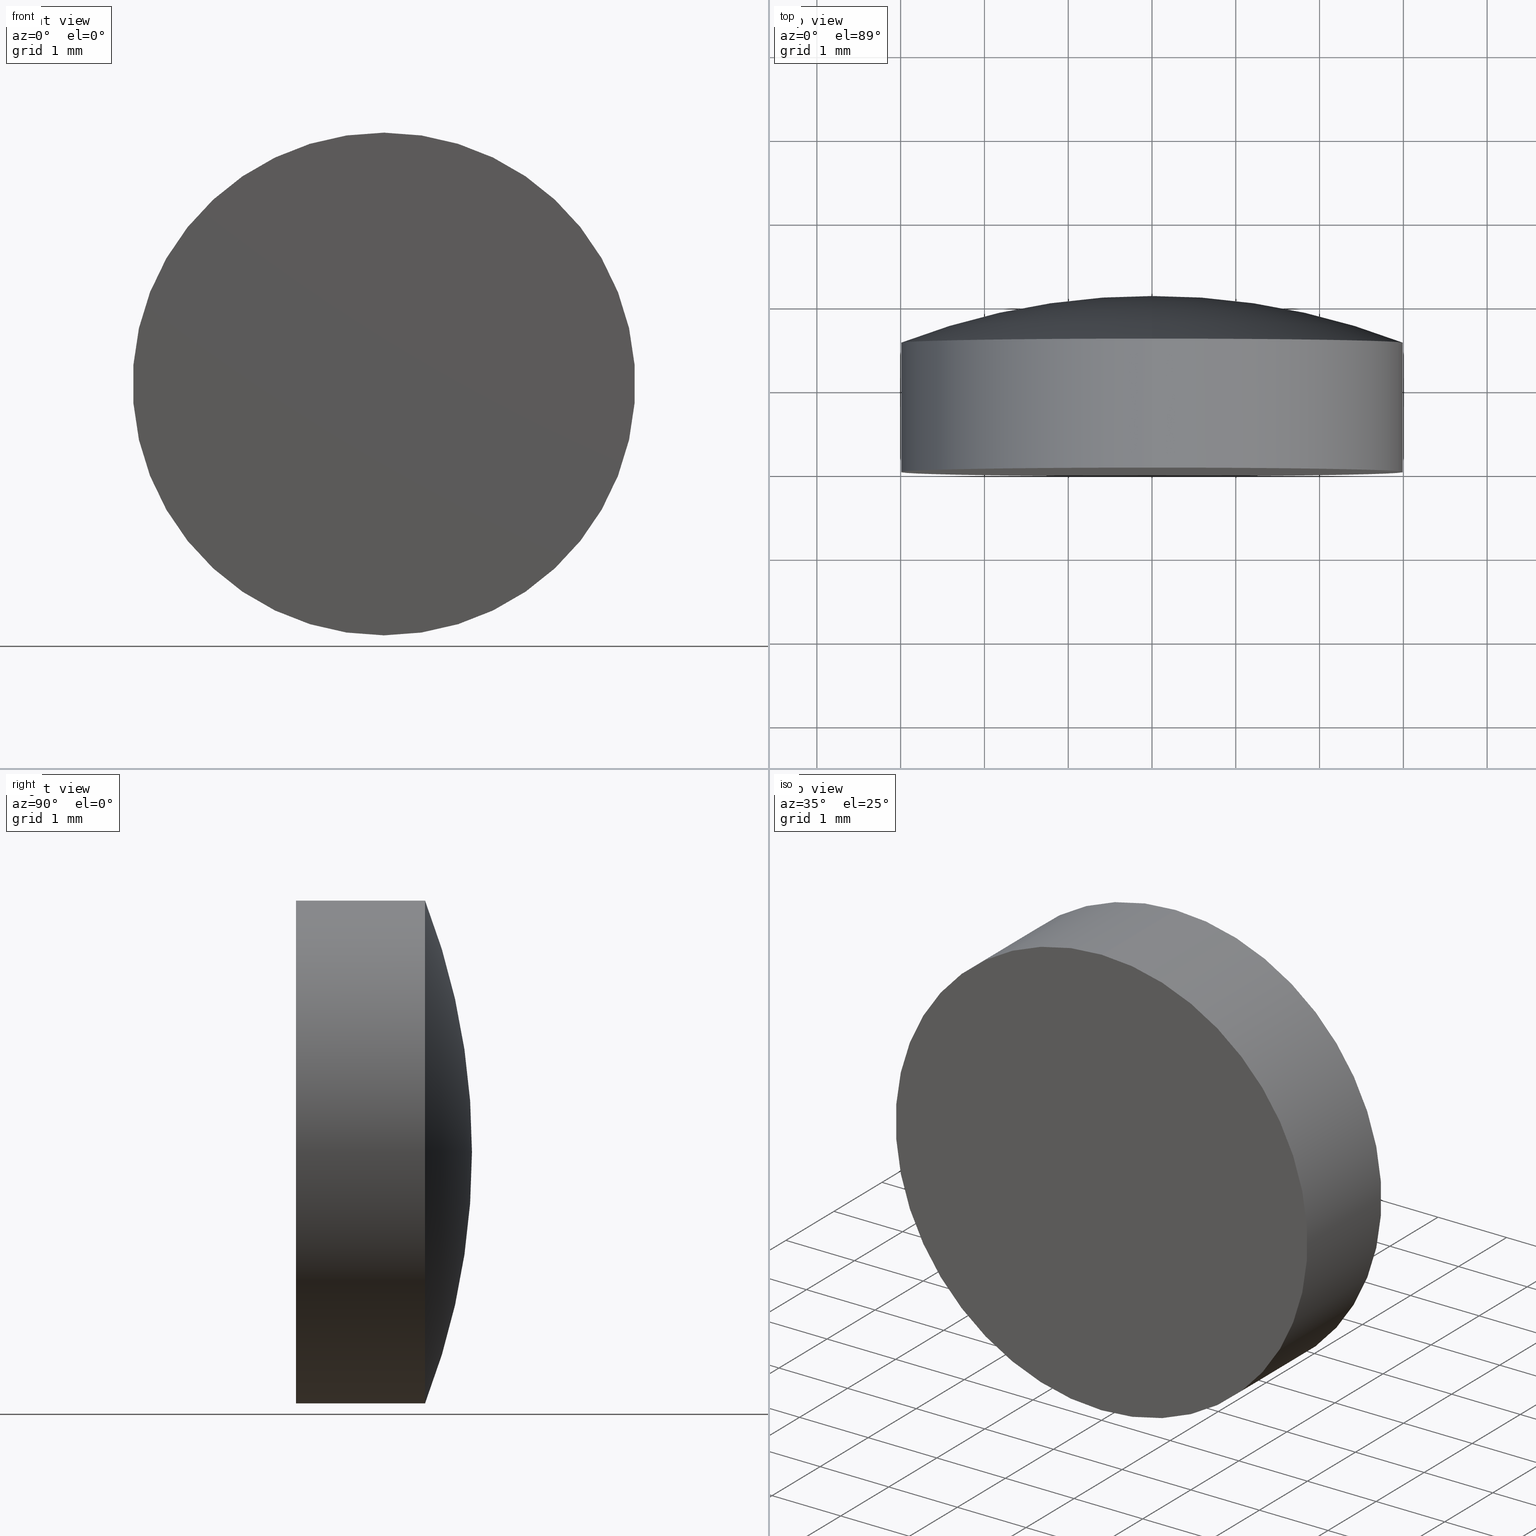
[diagram: canonical four-view strip — front | top / right | iso, engineering-drawing reading convention]
A machine part, canonical four-view strip (front | top / right | iso — engineering-drawing reading convention). The complete STEP part file that produces these views, byte-faithful:
ISO-10303-21;
HEADER;
FILE_DESCRIPTION (( 'STEP AP203' ),
    '1' );
FILE_NAME ('100585.STEP',
    '2024-05-10T01:30:10',
    ( '' ),
    ( '' ),
    'SwSTEP 2.0',
    'SolidWorks 2020',
    '' );
FILE_SCHEMA (( 'CONFIG_CONTROL_DESIGN' ));
ENDSEC;

DATA;
#1 = APPLICATION_PROTOCOL_DEFINITION ( 'international standard', 'config_control_design', 1994, #130 ) ;
#2 = EDGE_CURVE ( 'NONE', #73, #144, #4, .T. ) ;
#3 = EDGE_LOOP ( 'NONE', ( #192, #131, #18, #175 ) ) ;
#4 = CIRCLE ( 'NONE', #179, 8.259999999999999787 ) ;
#5 = SHAPE_DEFINITION_REPRESENTATION ( #169, #183 ) ;
#6 = EDGE_LOOP ( 'NONE', ( #70, #161, #100 ) ) ;
#7 = CC_DESIGN_SECURITY_CLASSIFICATION ( #113, ( #174 ) ) ;
#8 = APPROVAL_STATUS ( 'not_yet_approved' ) ;
#9 = CARTESIAN_POINT ( 'NONE',  ( 0.000000000000000000, -4.336808689942017736E-16, 0.000000000000000000 ) ) ;
#10 = PERSON_AND_ORGANIZATION_ROLE ( 'design_supplier' ) ;
#11 = CC_DESIGN_PERSON_AND_ORGANIZATION_ASSIGNMENT ( #145, #196, ( #113 ) ) ;
#12 = DIRECTION ( 'NONE',  ( -0.000000000000000000, 1.000000000000000000, -0.000000000000000000 ) ) ;
#13 = FACE_OUTER_BOUND ( 'NONE', #200, .T. ) ;
#14 = MANIFOLD_SOLID_BREP ( '��ת1', #79 ) ;
#15 = AXIS2_PLACEMENT_3D ( 'NONE', #168, #198, #199 ) ;
#16 = LOCAL_TIME ( 9, 30, 10.00000000000000000, #106 ) ;
#17 = PRODUCT_RELATED_PRODUCT_CATEGORY ( 'detail', '', ( #155 ) ) ;
#18 = ORIENTED_EDGE ( 'NONE', *, *, #64, .T. ) ;
#19 = APPROVAL_ROLE ( '' ) ;
#20 = CALENDAR_DATE ( 2024, 10, 5 ) ;
#21 = VERTEX_POINT ( 'NONE', #102 ) ;
#22 = PERSON_AND_ORGANIZATION ( #38, #33 ) ;
#23 = LINE ( 'NONE', #87, #139 ) ;
#24 = CALENDAR_DATE ( 2024, 10, 5 ) ;
#25 = DIRECTION ( 'NONE',  ( -0.000000000000000000, 1.000000000000000000, 0.000000000000000000 ) ) ;
#26 = APPROVAL_ROLE ( '' ) ;
#27 = LOCAL_TIME ( 9, 30, 10.00000000000000000, #191 ) ;
#28 = CC_DESIGN_DATE_AND_TIME_ASSIGNMENT ( #35, #158, ( #160 ) ) ;
#29 = DIRECTION ( 'NONE',  ( -0.000000000000000000, 1.000000000000000000, -0.000000000000000000 ) ) ;
#30 = CYLINDRICAL_SURFACE ( 'NONE', #128, 2.999999999999999112 ) ;
#31 = DIRECTION ( 'NONE',  ( 1.224646799147353207E-16, 0.000000000000000000, -1.000000000000000000 ) ) ;
#32 = EDGE_CURVE ( 'NONE', #115, #21, #96, .T. ) ;
#33 = ORGANIZATION ( 'δָ��', 'δָ��', '' ) ;
#34 = AXIS2_PLACEMENT_3D ( 'NONE', #59, #78, #182 ) ;
#35 = DATE_AND_TIME ( #110, #129 ) ;
#36 = PERSON_AND_ORGANIZATION_ROLE ( 'design_owner' ) ;
#37 = CC_DESIGN_APPROVAL ( #126, ( #113 ) ) ;
#38 = PERSON ( 'δָ��', 'δָ��', 'δָ��', ('δָ��'), ('δָ��'), ('δָ��') ) ;
#39 = AXIS2_PLACEMENT_3D ( 'NONE', #201, #66, #171 ) ;
#40 = CARTESIAN_POINT ( 'NONE',  ( 0.000000000000000000, -1.836970198721029934E-16, 0.000000000000000000 ) ) ;
#41 = DIRECTION ( 'NONE',  ( 0.000000000000000000, 0.000000000000000000, 1.000000000000000000 ) ) ;
#42 = DIRECTION ( 'NONE',  ( -0.000000000000000000, 1.000000000000000000, -0.000000000000000000 ) ) ;
#43 = CIRCLE ( 'NONE', #34, 2.999999999999998668 ) ;
#44 = PERSON_AND_ORGANIZATION ( #38, #33 ) ;
#45 = CYLINDRICAL_SURFACE ( 'NONE', #99, 2.999999999999999112 ) ;
#46 = LINE ( 'NONE', #136, #172 ) ;
#47 = DIRECTION ( 'NONE',  ( 1.000000000000000000, 0.000000000000000000, 1.224646799147353207E-16 ) ) ;
#48 = APPROVAL_PERSON_ORGANIZATION ( #22, #126, #91 ) ;
#49 = CC_DESIGN_PERSON_AND_ORGANIZATION_ASSIGNMENT ( #44, #10, ( #174 ) ) ;
#50 = ADVANCED_FACE ( 'NONE', ( #165 ), #177, .F. ) ;
#51 = CIRCLE ( 'NONE', #123, 2.999999999999998668 ) ;
#52 = CC_DESIGN_PERSON_AND_ORGANIZATION_ASSIGNMENT ( #68, #65, ( #160 ) ) ;
#53 = EDGE_LOOP ( 'NONE', ( #116, #83 ) ) ;
#54 = VERTEX_POINT ( 'NONE', #163 ) ;
#55 = DIRECTION ( 'NONE',  ( -0.000000000000000000, 1.000000000000000000, -0.000000000000000000 ) ) ;
#56 =( NAMED_UNIT ( * ) PLANE_ANGLE_UNIT ( ) SI_UNIT ( $, .RADIAN. ) );
#57 = CALENDAR_DATE ( 2024, 10, 5 ) ;
#58 = DIRECTION ( 'NONE',  ( 0.000000000000000000, 0.000000000000000000, 1.000000000000000000 ) ) ;
#59 = CARTESIAN_POINT ( 'NONE',  ( 0.000000000000000000, 1.539999999999998037, 0.000000000000000000 ) ) ;
#60 = CC_DESIGN_APPROVAL ( #197, ( #160 ) ) ;
#61 = CC_DESIGN_DATE_AND_TIME_ASSIGNMENT ( #121, #143, ( #113 ) ) ;
#62 = ORIENTED_EDGE ( 'NONE', *, *, #2, .T. ) ;
#63 = CIRCLE ( 'NONE', #94, 3.000000000000000000 ) ;
#64 = EDGE_CURVE ( 'NONE', #21, #73, #23, .T. ) ;
#65 = PERSON_AND_ORGANIZATION_ROLE ( 'creator' ) ;
#66 = DIRECTION ( 'NONE',  ( 0.000000000000000000, 0.000000000000000000, 1.000000000000000000 ) ) ;
#67 = TOROIDAL_SURFACE ( 'NONE', #184, 0.01040122243469885840, 8.259999999999999787 ) ;
#68 = PERSON_AND_ORGANIZATION ( #38, #33 ) ;
#69 = APPROVAL ( #75, 'δָ��' ) ;
#70 = ORIENTED_EDGE ( 'NONE', *, *, #84, .T. ) ;
#71 = CIRCLE ( 'NONE', #153, 8.259999999999999787 ) ;
#72 = ORIENTED_EDGE ( 'NONE', *, *, #138, .T. ) ;
#73 = VERTEX_POINT ( 'NONE', #146 ) ;
#74 = APPROVAL_PERSON_ORGANIZATION ( #81, #69, #26 ) ;
#75 = APPROVAL_STATUS ( 'not_yet_approved' ) ;
#76 = SECURITY_CLASSIFICATION_LEVEL ( 'unclassified' ) ;
#77 = CARTESIAN_POINT ( 'NONE',  ( 3.673940397442059868E-16, -4.336808689942017736E-16, -3.000000000000000000 ) ) ;
#78 = DIRECTION ( 'NONE',  ( -0.000000000000000000, 1.000000000000000000, -0.000000000000000000 ) ) ;
#79 = CLOSED_SHELL ( 'NONE', ( #170, #190, #124, #92, #50 ) ) ;
#80 = LOCAL_TIME ( 9, 30, 10.00000000000000000, #159 ) ;
#81 = PERSON_AND_ORGANIZATION ( #38, #33 ) ;
#82 = APPROVAL_DATE_TIME ( #142, #197 ) ;
#83 = ORIENTED_EDGE ( 'NONE', *, *, #32, .F. ) ;
#84 = EDGE_CURVE ( 'NONE', #73, #54, #51, .T. ) ;
#85 = PERSON_AND_ORGANIZATION_ROLE ( 'creator' ) ;
#86 = DIRECTION ( 'NONE',  ( -0.000000000000000000, 1.000000000000000000, -0.000000000000000000 ) ) ;
#87 = CARTESIAN_POINT ( 'NONE',  ( 0.000000000000000000, 2.100000000000000089, 2.999999999999999112 ) ) ;
#88 =( NAMED_UNIT ( * ) SI_UNIT ( $, .STERADIAN. ) SOLID_ANGLE_UNIT ( ) );
#89 = DATE_AND_TIME ( #147, #185 ) ;
#90 = DIRECTION ( 'NONE',  ( 0.000000000000000000, 0.000000000000000000, 1.000000000000000000 ) ) ;
#91 = APPROVAL_ROLE ( '' ) ;
#92 = ADVANCED_FACE ( 'NONE', ( #13 ), #103, .T. ) ;
#93 = CARTESIAN_POINT ( 'NONE',  ( 0.000000000000000000, 2.100000000000000089, 0.000000000000000000 ) ) ;
#94 = AXIS2_PLACEMENT_3D ( 'NONE', #118, #29, #90 ) ;
#95 = FACE_OUTER_BOUND ( 'NONE', #3, .T. ) ;
#96 = CIRCLE ( 'NONE', #111, 3.000000000000000000 ) ;
#97 = PERSON_AND_ORGANIZATION ( #38, #33 ) ;
#98 = APPLICATION_CONTEXT ( 'configuration controlled 3d designs of mechanical parts and assemblies' ) ;
#99 = AXIS2_PLACEMENT_3D ( 'NONE', #166, #42, #195 ) ;
#100 = ORIENTED_EDGE ( 'NONE', *, *, #2, .F. ) ;
#101 = DIRECTION ( 'NONE',  ( 0.000000000000000000, 0.000000000000000000, 1.000000000000000000 ) ) ;
#102 = CARTESIAN_POINT ( 'NONE',  ( 0.000000000000000000, -4.336808689942017736E-16, 3.000000000000000000 ) ) ;
#103 = TOROIDAL_SURFACE ( 'NONE', #15, 0.01040122243469885840, 8.259999999999999787 ) ;
#104 = DIRECTION ( 'NONE',  ( -0.000000000000000000, 1.000000000000000000, -0.000000000000000000 ) ) ;
#105 = CC_DESIGN_APPROVAL ( #69, ( #174 ) ) ;
#106 = COORDINATED_UNIVERSAL_TIME_OFFSET ( 8, 0, .AHEAD. ) ;
#107 = CARTESIAN_POINT ( 'NONE',  ( 2.286988957586610915E-16, 2.099999999999997868, 0.000000000000000000 ) ) ;
#108 = CARTESIAN_POINT ( 'NONE',  ( 0.000000000000000000, 1.539999999999998037, 0.000000000000000000 ) ) ;
#109 = DESIGN_CONTEXT ( 'detailed design', #130, 'design' ) ;
#110 = CALENDAR_DATE ( 2024, 10, 5 ) ;
#111 = AXIS2_PLACEMENT_3D ( 'NONE', #9, #55, #148 ) ;
#112 = PERSON_AND_ORGANIZATION ( #38, #33 ) ;
#113 = SECURITY_CLASSIFICATION ( '', '', #76 ) ;
#114 =( GEOMETRIC_REPRESENTATION_CONTEXT ( 3 ) GLOBAL_UNCERTAINTY_ASSIGNED_CONTEXT ( ( #125 ) ) GLOBAL_UNIT_ASSIGNED_CONTEXT ( ( #149, #56, #88 ) ) REPRESENTATION_CONTEXT ( 'NONE', 'WORKASPACE' ) );
#115 = VERTEX_POINT ( 'NONE', #77 ) ;
#116 = ORIENTED_EDGE ( 'NONE', *, *, #193, .F. ) ;
#117 = DIRECTION ( 'NONE',  ( -1.000000000000000000, 0.000000000000000000, 0.000000000000000000 ) ) ;
#118 = CARTESIAN_POINT ( 'NONE',  ( 0.000000000000000000, -4.336808689942017736E-16, 0.000000000000000000 ) ) ;
#119 = DIRECTION ( 'NONE',  ( 0.000000000000000000, 0.000000000000000000, 1.000000000000000000 ) ) ;
#120 = CC_DESIGN_PERSON_AND_ORGANIZATION_ASSIGNMENT ( #112, #36, ( #155 ) ) ;
#121 = DATE_AND_TIME ( #24, #27 ) ;
#122 = FACE_OUTER_BOUND ( 'NONE', #6, .T. ) ;
#123 = AXIS2_PLACEMENT_3D ( 'NONE', #108, #167, #151 ) ;
#124 = ADVANCED_FACE ( 'NONE', ( #95 ), #30, .T. ) ;
#125 = UNCERTAINTY_MEASURE_WITH_UNIT (LENGTH_MEASURE( 1.000000000000000082E-05 ), #149, 'distance_accuracy_value', 'NONE');
#126 = APPROVAL ( #8, 'δָ��' ) ;
#127 = APPROVAL_STATUS ( 'not_yet_approved' ) ;
#128 = AXIS2_PLACEMENT_3D ( 'NONE', #93, #12, #58 ) ;
#129 = LOCAL_TIME ( 9, 30, 10.00000000000000000, #187 ) ;
#130 = APPLICATION_CONTEXT ( 'configuration controlled 3d designs of mechanical parts and assemblies' ) ;
#131 = ORIENTED_EDGE ( 'NONE', *, *, #32, .T. ) ;
#132 = CARTESIAN_POINT ( 'NONE',  ( 0.000000000000000000, -6.159993451242676166, 0.01040122243469885840 ) ) ;
#133 = CARTESIAN_POINT ( 'NONE',  ( 0.000000000000000000, -6.159993451242676166, 0.000000000000000000 ) ) ;
#134 = COORDINATED_UNIVERSAL_TIME_OFFSET ( 8, 0, .AHEAD. ) ;
#135 = APPROVAL_DATE_TIME ( #89, #69 ) ;
#136 = CARTESIAN_POINT ( 'NONE',  ( 3.673940397442058882E-16, 2.100000000000000089, -2.999999999999999112 ) ) ;
#137 = CARTESIAN_POINT ( 'NONE',  ( 1.273782376187359739E-18, -6.159993451242676166, -0.01040122243469885840 ) ) ;
#138 = EDGE_CURVE ( 'NONE', #115, #54, #46, .T. ) ;
#139 = VECTOR ( 'NONE', #86, 1000.000000000000000 ) ;
#140 = APPROVAL_PERSON_ORGANIZATION ( #97, #197, #19 ) ;
#141 = CC_DESIGN_PERSON_AND_ORGANIZATION_ASSIGNMENT ( #150, #85, ( #174 ) ) ;
#142 = DATE_AND_TIME ( #20, #80 ) ;
#143 = DATE_TIME_ROLE ( 'classification_date' ) ;
#144 = VERTEX_POINT ( 'NONE', #107 ) ;
#145 = PERSON_AND_ORGANIZATION ( #38, #33 ) ;
#146 = CARTESIAN_POINT ( 'NONE',  ( 0.000000000000000000, 1.539999999999998037, 2.999999999999998668 ) ) ;
#147 = CALENDAR_DATE ( 2024, 10, 5 ) ;
#148 = DIRECTION ( 'NONE',  ( 0.000000000000000000, 0.000000000000000000, 1.000000000000000000 ) ) ;
#149 =( LENGTH_UNIT ( ) NAMED_UNIT ( * ) SI_UNIT ( .MILLI., .METRE. ) );
#150 = PERSON_AND_ORGANIZATION ( #38, #33 ) ;
#151 = DIRECTION ( 'NONE',  ( 0.000000000000000000, 0.000000000000000000, 1.000000000000000000 ) ) ;
#152 = DIRECTION ( 'NONE',  ( -0.000000000000000000, 1.000000000000000000, -0.000000000000000000 ) ) ;
#153 = AXIS2_PLACEMENT_3D ( 'NONE', #137, #47, #31 ) ;
#154 = EDGE_CURVE ( 'NONE', #54, #73, #43, .T. ) ;
#155 = PRODUCT ( '100585', '100585', '', ( #173 ) ) ;
#156 = EDGE_CURVE ( 'NONE', #54, #144, #71, .T. ) ;
#157 = ORIENTED_EDGE ( 'NONE', *, *, #64, .F. ) ;
#158 = DATE_TIME_ROLE ( 'creation_date' ) ;
#159 = COORDINATED_UNIVERSAL_TIME_OFFSET ( 8, 0, .AHEAD. ) ;
#160 = PRODUCT_DEFINITION ( 'δ֪', '', #174, #109 ) ;
#161 = ORIENTED_EDGE ( 'NONE', *, *, #156, .T. ) ;
#162 = ORIENTED_EDGE ( 'NONE', *, *, #84, .F. ) ;
#163 = CARTESIAN_POINT ( 'NONE',  ( 3.673940397442058389E-16, 1.539999999999998037, -2.999999999999998668 ) ) ;
#164 = ORIENTED_EDGE ( 'NONE', *, *, #193, .T. ) ;
#165 = FACE_OUTER_BOUND ( 'NONE', #53, .T. ) ;
#166 = CARTESIAN_POINT ( 'NONE',  ( 0.000000000000000000, 2.100000000000000089, 0.000000000000000000 ) ) ;
#167 = DIRECTION ( 'NONE',  ( -0.000000000000000000, 1.000000000000000000, -0.000000000000000000 ) ) ;
#168 = CARTESIAN_POINT ( 'NONE',  ( 0.000000000000000000, -6.159993451242676166, 0.000000000000000000 ) ) ;
#169 = PRODUCT_DEFINITION_SHAPE ( 'NONE', 'NONE',  #160 ) ;
#170 = ADVANCED_FACE ( 'NONE', ( #122 ), #67, .T. ) ;
#171 = DIRECTION ( 'NONE',  ( 1.000000000000000000, 0.000000000000000000, 0.000000000000000000 ) ) ;
#172 = VECTOR ( 'NONE', #152, 1000.000000000000000 ) ;
#173 = MECHANICAL_CONTEXT ( 'NONE', #98, 'mechanical' ) ;
#174 = PRODUCT_DEFINITION_FORMATION_WITH_SPECIFIED_SOURCE ( '�κ�', '', #155, .NOT_KNOWN. ) ;
#175 = ORIENTED_EDGE ( 'NONE', *, *, #154, .F. ) ;
#176 = APPROVAL_DATE_TIME ( #180, #126 ) ;
#177 = PLANE ( 'NONE',  #189 ) ;
#178 = ORIENTED_EDGE ( 'NONE', *, *, #156, .F. ) ;
#179 = AXIS2_PLACEMENT_3D ( 'NONE', #132, #117, #41 ) ;
#180 = DATE_AND_TIME ( #57, #16 ) ;
#181 = FACE_OUTER_BOUND ( 'NONE', #194, .T. ) ;
#182 = DIRECTION ( 'NONE',  ( 0.000000000000000000, 0.000000000000000000, 1.000000000000000000 ) ) ;
#183 = ADVANCED_BREP_SHAPE_REPRESENTATION ( '100585', ( #14, #39 ), #114 ) ;
#184 = AXIS2_PLACEMENT_3D ( 'NONE', #133, #104, #119 ) ;
#185 = LOCAL_TIME ( 9, 30, 10.00000000000000000, #134 ) ;
#186 = ORIENTED_EDGE ( 'NONE', *, *, #154, .T. ) ;
#187 = COORDINATED_UNIVERSAL_TIME_OFFSET ( 8, 0, .AHEAD. ) ;
#188 = APPLICATION_PROTOCOL_DEFINITION ( 'international standard', 'config_control_design', 1994, #98 ) ;
#189 = AXIS2_PLACEMENT_3D ( 'NONE', #40, #25, #101 ) ;
#190 = ADVANCED_FACE ( 'NONE', ( #181 ), #45, .T. ) ;
#191 = COORDINATED_UNIVERSAL_TIME_OFFSET ( 8, 0, .AHEAD. ) ;
#192 = ORIENTED_EDGE ( 'NONE', *, *, #138, .F. ) ;
#193 = EDGE_CURVE ( 'NONE', #21, #115, #63, .T. ) ;
#194 = EDGE_LOOP ( 'NONE', ( #164, #72, #162, #157 ) ) ;
#195 = DIRECTION ( 'NONE',  ( 0.000000000000000000, 0.000000000000000000, 1.000000000000000000 ) ) ;
#196 = PERSON_AND_ORGANIZATION_ROLE ( 'classification_officer' ) ;
#197 = APPROVAL ( #127, 'δָ��' ) ;
#198 = DIRECTION ( 'NONE',  ( -0.000000000000000000, 1.000000000000000000, -0.000000000000000000 ) ) ;
#199 = DIRECTION ( 'NONE',  ( 0.000000000000000000, 0.000000000000000000, 1.000000000000000000 ) ) ;
#200 = EDGE_LOOP ( 'NONE', ( #178, #186, #62 ) ) ;
#201 = CARTESIAN_POINT ( 'NONE',  ( 0.000000000000000000, 0.000000000000000000, 0.000000000000000000 ) ) ;
ENDSEC;
END-ISO-10303-21;
